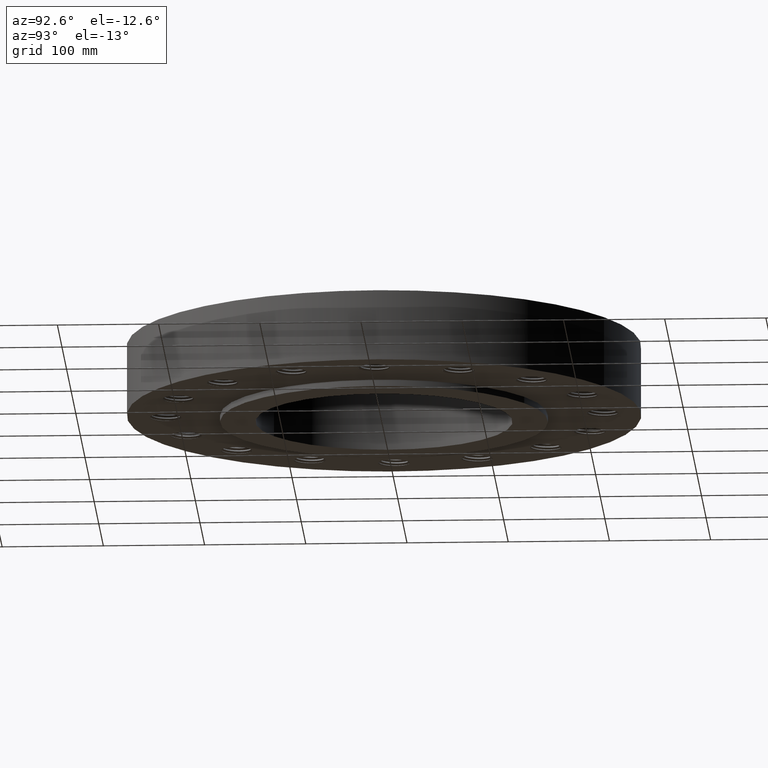
[diagram: clean part render]
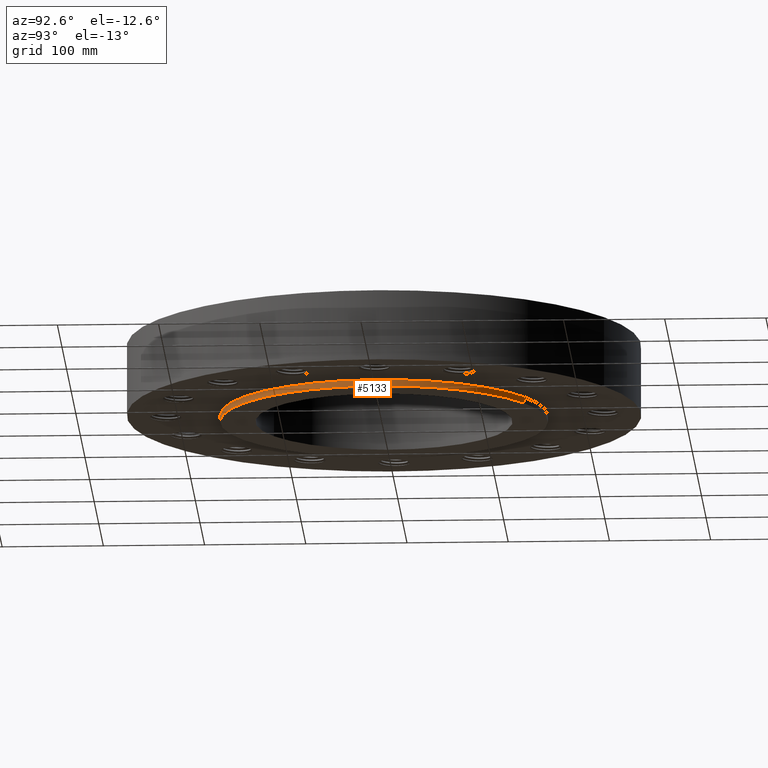
[diagram: same view with one face highlighted and labeled with its STEP entity id]
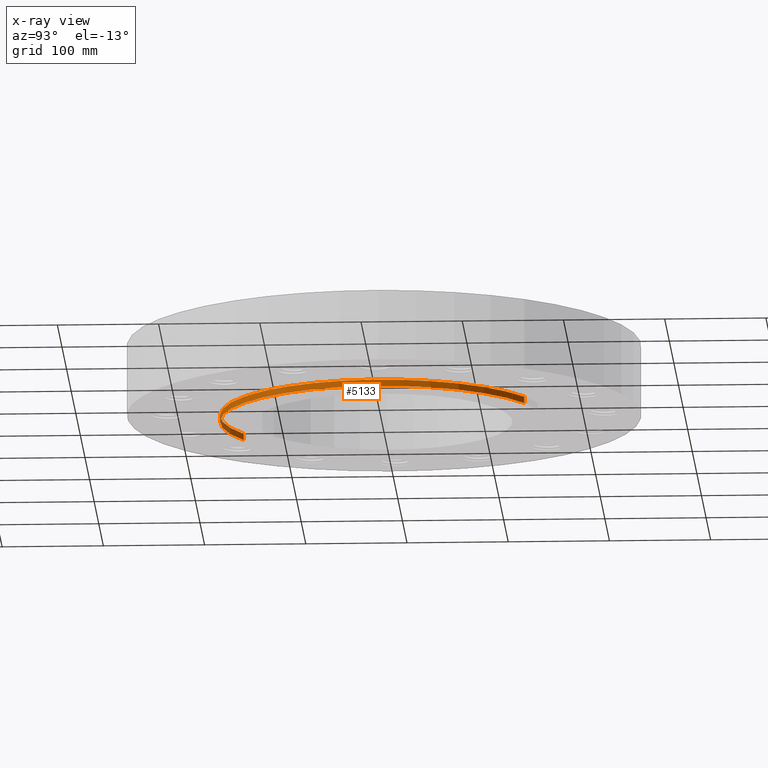
[diagram: x-ray of the same camera — body ghosted, the highlighted face saturated]
A machine part, auxiliary view. The second image highlights one B-rep face of the part: STEP entity #5133.
The next image is the same camera in x-ray: the body ghosted, the highlighted face saturated — about 0% of this face is hidden behind the body in this view.
In plain terms, the highlighted cylindrical surface (partial cylindrical patch) has radius 161.925 mm, axis along (0, 0, -1).
Its self-contained STEP definition (entity closure, byte-faithful):
#4323=AXIS2_PLACEMENT_3D('Circle Axis2P3D',#4321,#4322,$) ;
#5106=AXIS2_PLACEMENT_3D('Cylinder Axis2P3D',#5103,#5104,#5105) ;
#5110=AXIS2_PLACEMENT_3D('Circle Axis2P3D',#5108,#5109,$) ;
#4321=CARTESIAN_POINT('Axis2P3D Location',(0.,0.,0.)) ;
#4325=CARTESIAN_POINT('Vertex',(3.05633780861,5.59458883207,-3.04917945661E-014)) ;
#4327=CARTESIAN_POINT('Vertex',(-3.05633780861,-5.59458883207,-3.04917945661E-014)) ;
#5103=CARTESIAN_POINT('Axis2P3D Location',(0.,0.,1.25000000001)) ;
#5108=CARTESIAN_POINT('Axis2P3D Location',(0.,0.,-0.250000000001)) ;
#5112=CARTESIAN_POINT('Vertex',(3.05633780861,5.59458883207,-0.250000000001)) ;
#5114=CARTESIAN_POINT('Vertex',(-3.05633780861,-5.59458883207,-0.250000000001)) ;
#5117=CARTESIAN_POINT('Line Origine',(3.05633780861,5.59458883207,-0.125000000001)) ;
#5122=CARTESIAN_POINT('Line Origine',(-3.05633780861,-5.59458883207,-0.125000000001)) ;
#4322=DIRECTION('Axis2P3D Direction',(0.,0.,-0.0393700787402)) ;
#5104=DIRECTION('Axis2P3D Direction',(0.,0.,-0.0393700787402)) ;
#5105=DIRECTION('Axis2P3D XDirection',(-0.0188750212049,-0.0345504945626,0.)) ;
#5109=DIRECTION('Axis2P3D Direction',(0.,0.,-0.0393700787402)) ;
#5118=DIRECTION('Vector Direction',(0.,0.,-0.0393700787402)) ;
#5123=DIRECTION('Vector Direction',(0.,0.,-0.0393700787402)) ;
#5119=VECTOR('Line Direction',#5118,0.0393700787402) ;
#5124=VECTOR('Line Direction',#5123,0.0393700787402) ;
#5128=ORIENTED_EDGE('',*,*,#5116,.F.) ;
#5129=ORIENTED_EDGE('',*,*,#5121,.T.) ;
#5130=ORIENTED_EDGE('',*,*,#4329,.T.) ;
#5131=ORIENTED_EDGE('',*,*,#5126,.F.) ;
#5133=ADVANCED_FACE('PartBody',(#5132),#5107,.T.) ;
#4324=CIRCLE('generated circle',#4323,6.37500000003) ;
#5111=CIRCLE('generated circle',#5110,6.37500000003) ;
#5107=CYLINDRICAL_SURFACE('generated cylinder',#5106,6.37500000003) ;
#4329=EDGE_CURVE('',#4326,#4328,#4324,.T.) ;
#5116=EDGE_CURVE('',#5113,#5115,#5111,.T.) ;
#5121=EDGE_CURVE('',#5113,#4326,#5120,.F.) ;
#5126=EDGE_CURVE('',#5115,#4328,#5125,.F.) ;
#5127=EDGE_LOOP('',(#5128,#5129,#5130,#5131)) ;
#5132=FACE_OUTER_BOUND('',#5127,.T.) ;
#5120=LINE('Line',#5117,#5119) ;
#5125=LINE('Line',#5122,#5124) ;
#4326=VERTEX_POINT('',#4325) ;
#4328=VERTEX_POINT('',#4327) ;
#5113=VERTEX_POINT('',#5112) ;
#5115=VERTEX_POINT('',#5114) ;